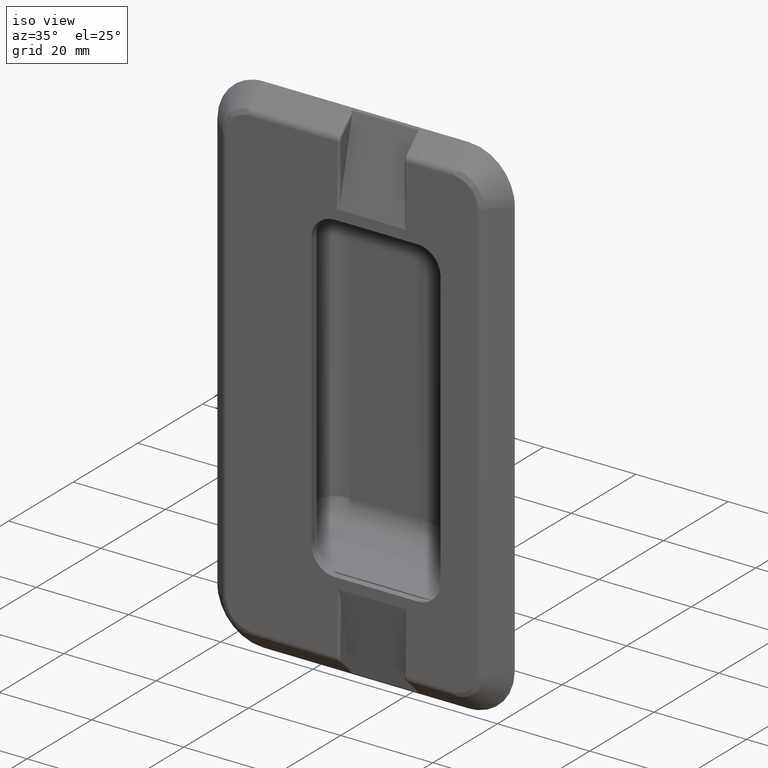
[diagram: clean part render]
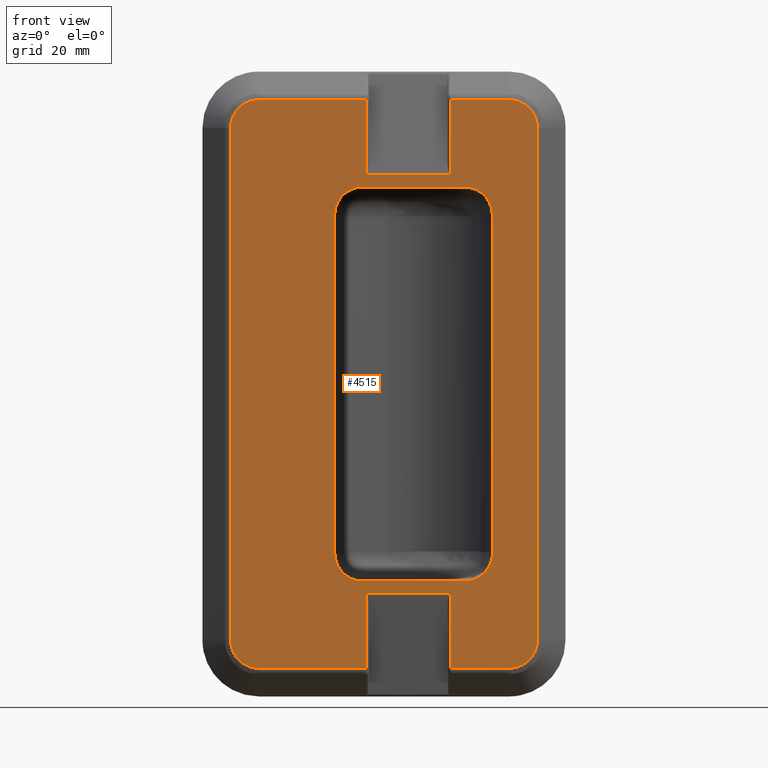
[diagram: tour spotlight — one face highlighted and labeled with its STEP entity id]
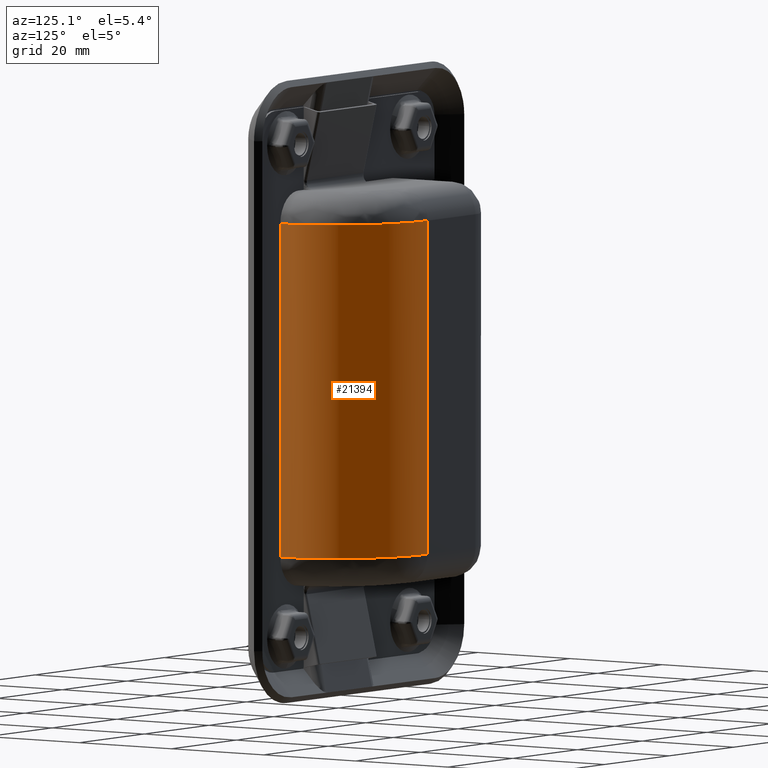
[diagram: tour spotlight — one face highlighted and labeled with its STEP entity id]
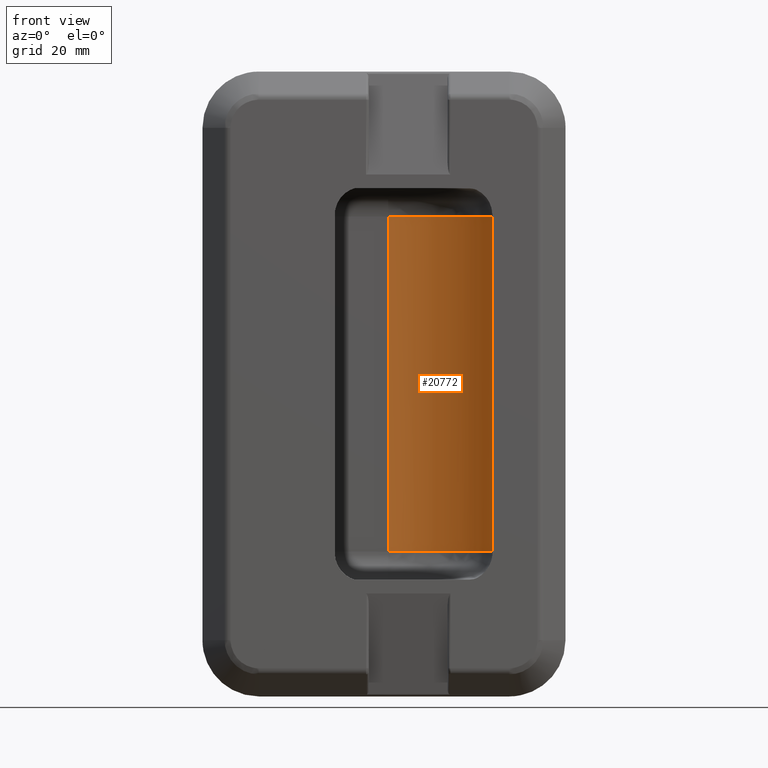
[diagram: tour spotlight — one face highlighted and labeled with its STEP entity id]
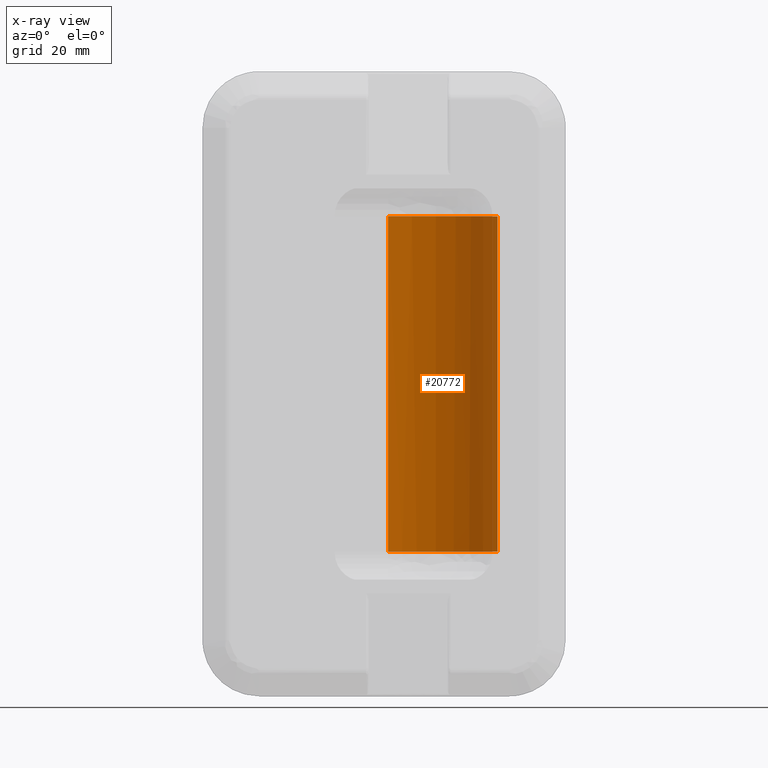
[diagram: x-ray of the same camera — body ghosted, this tour face saturated]
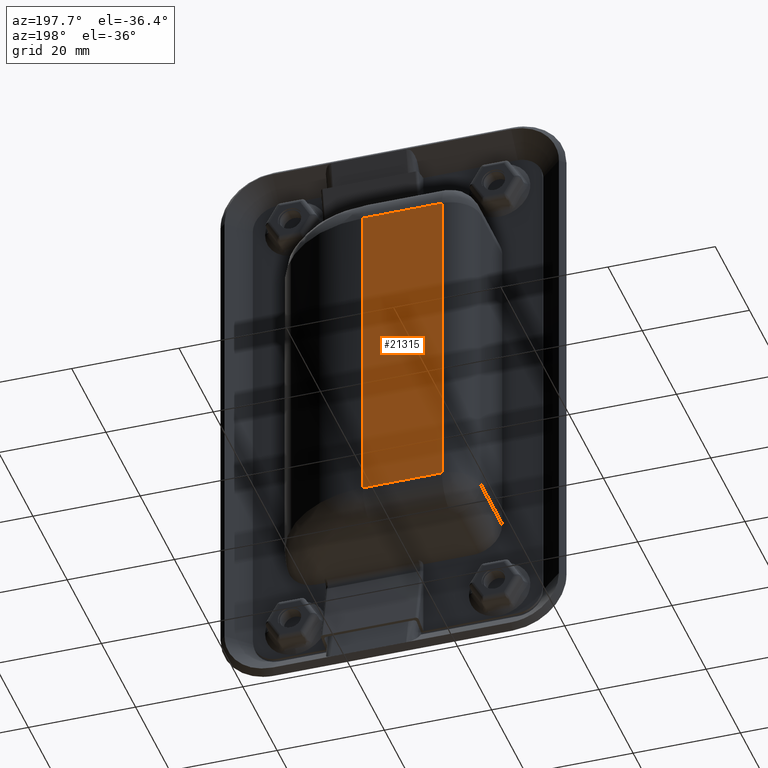
[diagram: tour spotlight — one face highlighted and labeled with its STEP entity id]
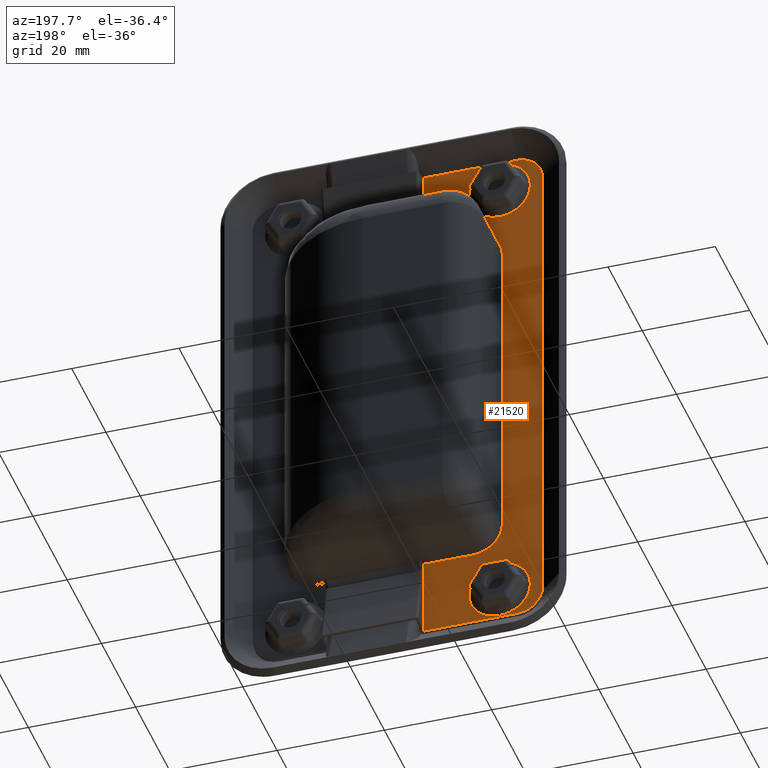
[diagram: tour spotlight — one face highlighted and labeled with its STEP entity id]
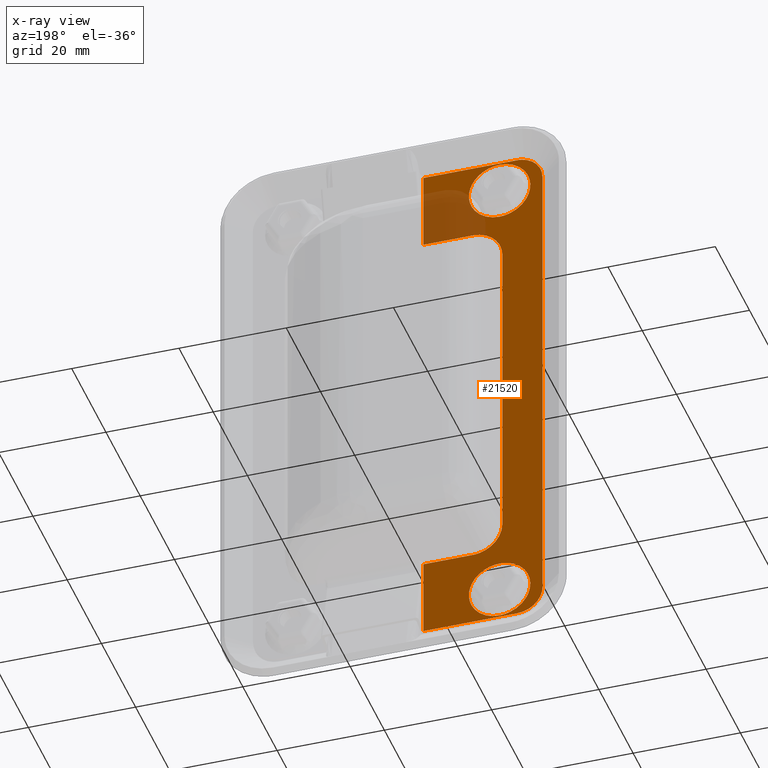
[diagram: x-ray of the same camera — body ghosted, this tour face saturated]
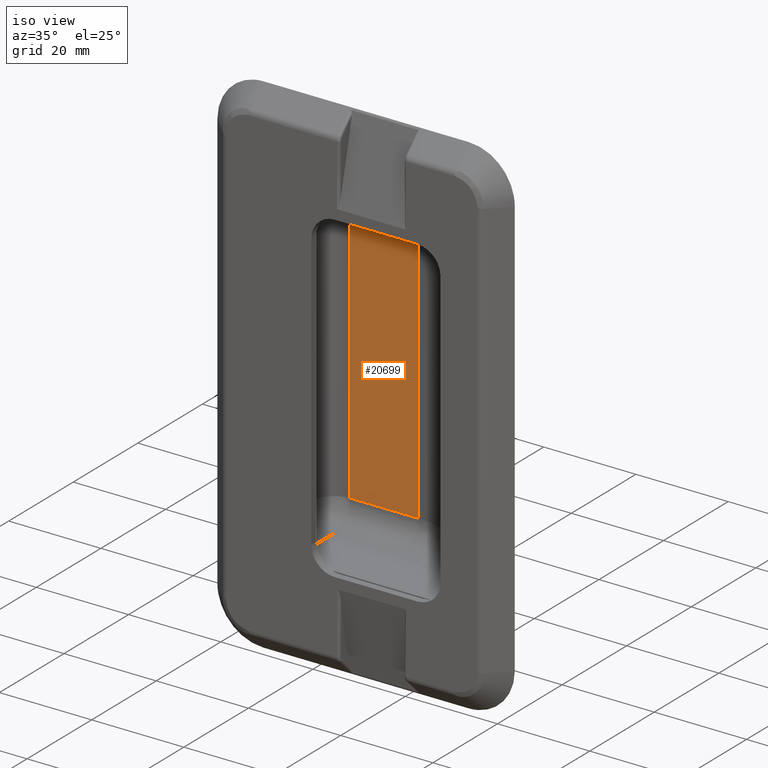
[diagram: tour spotlight — one face highlighted and labeled with its STEP entity id]
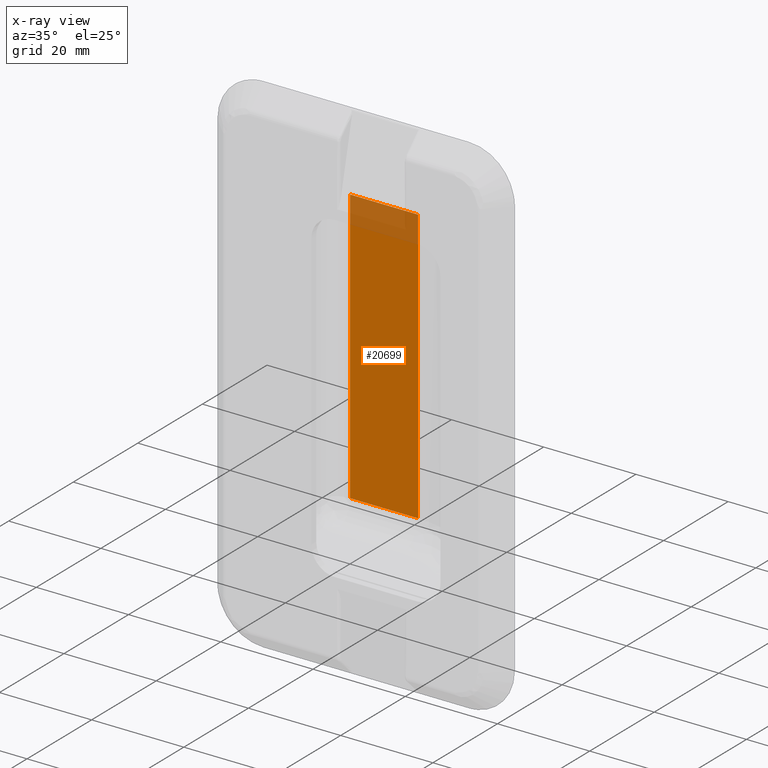
[diagram: x-ray of the same camera — body ghosted, this tour face saturated]
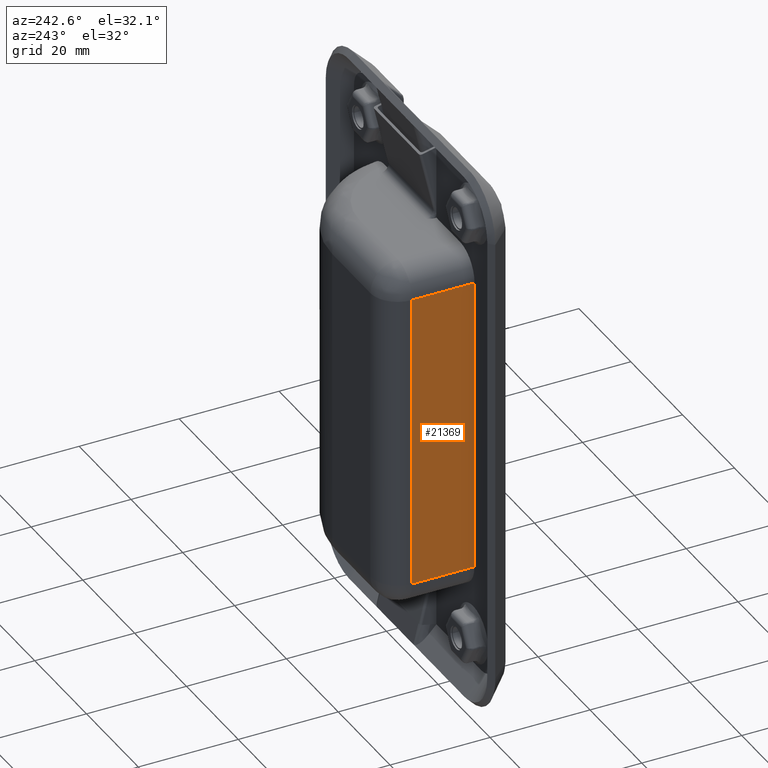
[diagram: tour spotlight — one face highlighted and labeled with its STEP entity id]
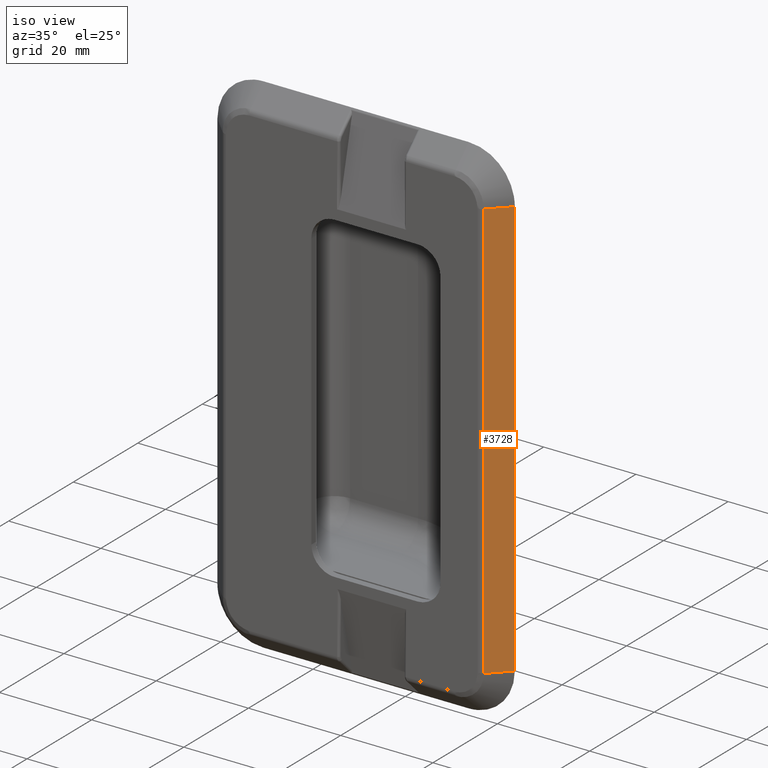
[diagram: tour spotlight — one face highlighted and labeled with its STEP entity id]
A machine part: a face-by-face anatomy tour. The part has 465 B-rep faces; the first image is the clean iso view, then the 8 largest visible faces are spotlighted one at a time (largest first), each with its STEP entity span.

Face 1 — front view, entity #4515. In plain terms, the highlighted face is a freeform B-spline surface patch.
Definition (entity closure, byte-faithful):
#2301=CARTESIAN_POINT('',(44.049999999999997,-5.499985000000000,50.500694937707799));
#2302=VERTEX_POINT('',#2301);
#2395=CARTESIAN_POINT('',(29.050000000000001,-5.499985000000000,50.500694937707799));
#2396=VERTEX_POINT('',#2395);
#2549=CARTESIAN_POINT('',(29.050000000000001,-5.499985000000000,-50.500694937707799));
#2550=VERTEX_POINT('',#2549);
#2643=CARTESIAN_POINT('',(44.049999999999997,-5.499985000000000,-50.500694937707799));
#2644=VERTEX_POINT('',#2643);
#2770=CARTESIAN_POINT('',(10.0,-5.499985000000000,-50.500694937707692));
#2771=VERTEX_POINT('',#2770);
#2772=CARTESIAN_POINT('',(10.0,-5.499985000000000,-50.500694937707692));
#2773=CARTESIAN_POINT('',(29.050000000000001,-5.499985000000000,-50.500694937707799));
#2774=QUASI_UNIFORM_CURVE('',1,(#2772,#2773),.UNSPECIFIED.,.F.,.U.);
#2775=EDGE_CURVE('',#2771,#2550,#2774,.T.);
#2810=CARTESIAN_POINT('',(4.999305062292249,-5.499985000000000,-45.500000000000000));
#2811=VERTEX_POINT('',#2810);
#2841=CARTESIAN_POINT('',(4.999305062292290,-5.499985000000000,-45.500000000000000));
#2842=CARTESIAN_POINT('',(4.999305062292289,-5.499985000000000,-50.500694937707713));
#2843=CARTESIAN_POINT('',(10.0,-5.499985000000000,-50.500694937707713));
#2851=(BOUNDED_CURVE()B_SPLINE_CURVE(2,(#2841,#2842,#2843),.UNSPECIFIED.,.F.,.U.)CURVE()GEOMETRIC_REPRESENTATION_ITEM()QUASI_UNIFORM_CURVE()RATIONAL_B_SPLINE_CURVE((1.0,0.707106781186547,1.0))REPRESENTATION_ITEM(''));
#2852=EDGE_CURVE('',#2811,#2771,#2851,.T.);
#2871=CARTESIAN_POINT('',(4.999305062292289,-5.499985000000000,45.500000000000000));
#2872=VERTEX_POINT('',#2871);
#2894=CARTESIAN_POINT('',(4.999305062292289,-5.499985000000000,45.500000000000000));
#2895=CARTESIAN_POINT('',(4.999305062292249,-5.499985000000000,-45.500000000000000));
#2896=QUASI_UNIFORM_CURVE('',1,(#2894,#2895),.UNSPECIFIED.,.F.,.U.);
#2897=EDGE_CURVE('',#2872,#2811,#2896,.T.);
#2919=CARTESIAN_POINT('',(10.0,-5.499985000000000,50.500694937707799));
#2920=VERTEX_POINT('',#2919);
#2950=CARTESIAN_POINT('',(10.0,-5.499985000000000,50.500694937707713));
#2951=CARTESIAN_POINT('',(4.999305062292289,-5.499985000000000,50.500694937707713));
#2952=CARTESIAN_POINT('',(4.999305062292290,-5.499985000000000,45.500000000000000));
#2960=(BOUNDED_CURVE()B_SPLINE_CURVE(2,(#2950,#2951,#2952),.UNSPECIFIED.,.F.,.U.)CURVE()GEOMETRIC_REPRESENTATION_ITEM()QUASI_UNIFORM_CURVE()RATIONAL_B_SPLINE_CURVE((1.0,0.707106781186547,1.0))REPRESENTATION_ITEM(''));
#2961=EDGE_CURVE('',#2920,#2872,#2960,.T.);
#2980=CARTESIAN_POINT('',(29.050000000000001,-5.499985000000000,50.500694937707799));
#2981=CARTESIAN_POINT('',(10.0,-5.499985000000000,50.500694937707799));
#2982=QUASI_UNIFORM_CURVE('',1,(#2980,#2981),.UNSPECIFIED.,.F.,.U.);
#2983=EDGE_CURVE('',#2396,#2920,#2982,.T.);
#3009=CARTESIAN_POINT('',(54.500000000000000,-5.499985000000000,-50.500694937707692));
#3010=VERTEX_POINT('',#3009);
#3011=CARTESIAN_POINT('',(44.049999999999997,-5.499985000000000,-50.500694937707799));
#3012=CARTESIAN_POINT('',(54.500000000000000,-5.499985000000000,-50.500694937707692));
#3013=QUASI_UNIFORM_CURVE('',1,(#3011,#3012),.UNSPECIFIED.,.F.,.U.);
#3014=EDGE_CURVE('',#2644,#3010,#3013,.T.);
#3059=CARTESIAN_POINT('',(59.500694937707699,-5.499985000000000,-45.500000000000000));
#3060=VERTEX_POINT('',#3059);
#3074=CARTESIAN_POINT('',(54.500000000000000,-5.499985000000000,-50.500694937707713));
#3075=CARTESIAN_POINT('',(59.500694937707692,-5.499985000000000,-50.500694937707713));
#3076=CARTESIAN_POINT('',(59.500694937707713,-5.499985000000000,-45.500000000000000));
#3084=(BOUNDED_CURVE()B_SPLINE_CURVE(2,(#3074,#3075,#3076),.UNSPECIFIED.,.F.,.U.)CURVE()GEOMETRIC_REPRESENTATION_ITEM()QUASI_UNIFORM_CURVE()RATIONAL_B_SPLINE_CURVE((1.0,0.707106781186547,1.0))REPRESENTATION_ITEM(''));
#3085=EDGE_CURVE('',#3010,#3060,#3084,.T.);
#3120=CARTESIAN_POINT('',(59.500694937707699,-5.499985000000000,45.500000000000000));
#3121=VERTEX_POINT('',#3120);
#3135=CARTESIAN_POINT('',(59.500694937707699,-5.499985000000000,-45.500000000000000));
#3136=CARTESIAN_POINT('',(59.500694937707699,-5.499985000000000,45.500000000000000));
#3137=QUASI_UNIFORM_CURVE('',1,(#3135,#3136),.UNSPECIFIED.,.F.,.U.);
#3138=EDGE_CURVE('',#3060,#3121,#3137,.T.);
#3168=CARTESIAN_POINT('',(54.500000000000000,-5.499985000000000,50.500694937707692));
#3169=VERTEX_POINT('',#3168);
#3183=CARTESIAN_POINT('',(59.500694937707713,-5.499985000000000,45.500000000000000));
#3184=CARTESIAN_POINT('',(59.500694937707692,-5.499985000000000,50.500694937707713));
#3185=CARTESIAN_POINT('',(54.500000000000000,-5.499985000000000,50.500694937707713));
#3193=(BOUNDED_CURVE()B_SPLINE_CURVE(2,(#3183,#3184,#3185),.UNSPECIFIED.,.F.,.U.)CURVE()GEOMETRIC_REPRESENTATION_ITEM()QUASI_UNIFORM_CURVE()RATIONAL_B_SPLINE_CURVE((1.0,0.707106781186547,1.0))REPRESENTATION_ITEM(''));
#3194=EDGE_CURVE('',#3121,#3169,#3193,.T.);
#3233=CARTESIAN_POINT('',(54.500000000000000,-5.499985000000000,50.500694937707692));
#3234=CARTESIAN_POINT('',(44.049999999999997,-5.499985000000000,50.500694937707799));
#3235=QUASI_UNIFORM_CURVE('',1,(#3233,#3234),.UNSPECIFIED.,.F.,.U.);
#3236=EDGE_CURVE('',#3169,#2302,#3235,.T.);
#3256=CARTESIAN_POINT('',(44.049999999999997,-5.499985000000000,37.220436142754536));
#3257=VERTEX_POINT('',#3256);
#3258=CARTESIAN_POINT('',(44.049999999999997,-5.499985000000000,50.500694937707799));
#3259=CARTESIAN_POINT('',(44.049999999999997,-5.499985000000000,37.220436142754536));
#3260=QUASI_UNIFORM_CURVE('',1,(#3258,#3259),.UNSPECIFIED.,.F.,.U.);
#3261=EDGE_CURVE('',#2302,#3257,#3260,.T.);
#3309=CARTESIAN_POINT('',(29.050000000000001,-5.499985000000000,37.220436142754536));
#3310=VERTEX_POINT('',#3309);
#3311=CARTESIAN_POINT('',(29.050000000000001,-5.499985000000000,37.220436142754536));
#3312=CARTESIAN_POINT('',(29.050000000000001,-5.499985000000000,50.500694937707799));
#3313=QUASI_UNIFORM_CURVE('',1,(#3311,#3312),.UNSPECIFIED.,.F.,.U.);
#3314=EDGE_CURVE('',#3310,#2396,#3313,.T.);
#3354=CARTESIAN_POINT('',(44.049999999999997,-5.499985000000000,-37.220436142754536));
#3355=VERTEX_POINT('',#3354);
#3356=CARTESIAN_POINT('',(44.049999999999997,-5.499985000000000,-37.220436142754536));
#3357=CARTESIAN_POINT('',(44.049999999999997,-5.499985000000000,-50.500694937707799));
#3358=QUASI_UNIFORM_CURVE('',1,(#3356,#3357),.UNSPECIFIED.,.F.,.U.);
#3359=EDGE_CURVE('',#3355,#2644,#3358,.T.);
#3391=CARTESIAN_POINT('',(29.050000000000001,-5.499985000000000,-37.220436142754536));
#3392=VERTEX_POINT('',#3391);
#3393=CARTESIAN_POINT('',(29.050000000000001,-5.499985000000000,-50.500694937707799));
#3394=CARTESIAN_POINT('',(29.050000000000001,-5.499985000000000,-37.220436142754536));
#3395=QUASI_UNIFORM_CURVE('',1,(#3393,#3394),.UNSPECIFIED.,.F.,.U.);
#3396=EDGE_CURVE('',#2550,#3392,#3395,.T.);
#3466=CARTESIAN_POINT('',(29.050000000000001,-5.499985000000000,37.220436142754536));
#3467=CARTESIAN_POINT('',(44.049999999999997,-5.499985000000000,37.220436142754536));
#3468=QUASI_UNIFORM_CURVE('',1,(#3466,#3467),.UNSPECIFIED.,.F.,.U.);
#3469=EDGE_CURVE('',#3310,#3257,#3468,.T.);
#3518=CARTESIAN_POINT('',(29.050000000000001,-5.499985000000000,-37.220436142754536));
#3519=CARTESIAN_POINT('',(44.049999999999997,-5.499985000000000,-37.220436142754536));
#3520=QUASI_UNIFORM_CURVE('',1,(#3518,#3519),.UNSPECIFIED.,.F.,.U.);
#3521=EDGE_CURVE('',#3392,#3355,#3520,.T.);
#4095=CARTESIAN_POINT('',(46.500000000000000,-5.499985000000000,35.0));
#4096=VERTEX_POINT('',#4095);
#4102=CARTESIAN_POINT('',(28.500000000000000,-5.499984999999930,35.0));
#4103=VERTEX_POINT('',#4102);
#4104=CARTESIAN_POINT('',(46.500000000000000,-5.499985000000000,35.0));
#4105=CARTESIAN_POINT('',(28.500000000000000,-5.499984999999930,35.0));
#4106=QUASI_UNIFORM_CURVE('',1,(#4104,#4105),.UNSPECIFIED.,.F.,.U.);
#4107=EDGE_CURVE('',#4096,#4103,#4106,.T.);
#4140=CARTESIAN_POINT('',(51.500000000000000,-5.499984999999930,30.0));
#4141=VERTEX_POINT('',#4140);
#4147=CARTESIAN_POINT('',(51.500000000000000,-5.499984999999930,30.0));
#4148=CARTESIAN_POINT('',(51.500000000000000,-5.499984999999930,34.999999999999993));
#4149=CARTESIAN_POINT('',(46.500000000000000,-5.499984999999930,34.999999999999993));
#4157=(BOUNDED_CURVE()B_SPLINE_CURVE(2,(#4147,#4148,#4149),.UNSPECIFIED.,.F.,.U.)CURVE()GEOMETRIC_REPRESENTATION_ITEM()QUASI_UNIFORM_CURVE()RATIONAL_B_SPLINE_CURVE((1.0,0.707106781186548,1.0))REPRESENTATION_ITEM(''));
#4158=EDGE_CURVE('',#4141,#4096,#4157,.T.);
#4184=CARTESIAN_POINT('',(51.500000000000000,-5.499984999999930,-30.0));
#4185=VERTEX_POINT('',#4184);
#4191=CARTESIAN_POINT('',(51.500000000000000,-5.499984999999930,-30.0));
#4192=CARTESIAN_POINT('',(51.500000000000000,-5.499984999999930,30.0));
#4193=QUASI_UNIFORM_CURVE('',1,(#4191,#4192),.UNSPECIFIED.,.F.,.U.);
#4194=EDGE_CURVE('',#4185,#4141,#4193,.T.);
#4221=CARTESIAN_POINT('',(46.500000000000000,-5.499984999999930,-35.0));
#4222=VERTEX_POINT('',#4221);
#4228=CARTESIAN_POINT('',(46.500000000000000,-5.499984999999930,-34.999999999999993));
#4229=CARTESIAN_POINT('',(51.500000000000000,-5.499984999999930,-34.999999999999993));
#4230=CARTESIAN_POINT('',(51.500000000000000,-5.499984999999930,-30.0));
#4238=(BOUNDED_CURVE()B_SPLINE_CURVE(2,(#4228,#4229,#4230),.UNSPECIFIED.,.F.,.U.)CURVE()GEOMETRIC_REPRESENTATION_ITEM()QUASI_UNIFORM_CURVE()RATIONAL_B_SPLINE_CURVE((1.0,0.707106781186548,1.0))REPRESENTATION_ITEM(''));
#4239=EDGE_CURVE('',#4222,#4185,#4238,.T.);
#4265=CARTESIAN_POINT('',(28.500000000000000,-5.499984999999930,-35.0));
#4266=VERTEX_POINT('',#4265);
#4272=CARTESIAN_POINT('',(28.500000000000000,-5.499984999999930,-35.0));
#4273=CARTESIAN_POINT('',(46.500000000000000,-5.499984999999930,-35.0));
#4274=QUASI_UNIFORM_CURVE('',1,(#4272,#4273),.UNSPECIFIED.,.F.,.U.);
#4275=EDGE_CURVE('',#4266,#4222,#4274,.T.);
#4302=CARTESIAN_POINT('',(23.500000000000000,-5.499984999999930,-30.0));
#4303=VERTEX_POINT('',#4302);
#4309=CARTESIAN_POINT('',(23.500000000000000,-5.499984999999930,-30.0));
#4310=CARTESIAN_POINT('',(23.500000000000004,-5.499984999999930,-34.999999999999993));
#4311=CARTESIAN_POINT('',(28.500000000000000,-5.499984999999930,-34.999999999999993));
#4319=(BOUNDED_CURVE()B_SPLINE_CURVE(2,(#4309,#4310,#4311),.UNSPECIFIED.,.F.,.U.)CURVE()GEOMETRIC_REPRESENTATION_ITEM()QUASI_UNIFORM_CURVE()RATIONAL_B_SPLINE_CURVE((1.0,0.707106781186548,1.0))REPRESENTATION_ITEM(''));
#4320=EDGE_CURVE('',#4303,#4266,#4319,.T.);
#4346=CARTESIAN_POINT('',(23.500000000000000,-5.499984999999930,30.0));
#4347=VERTEX_POINT('',#4346);
#4353=CARTESIAN_POINT('',(23.500000000000000,-5.499984999999930,30.0));
#4354=CARTESIAN_POINT('',(23.500000000000000,-5.499984999999930,-30.0));
#4355=QUASI_UNIFORM_CURVE('',1,(#4353,#4354),.UNSPECIFIED.,.F.,.U.);
#4356=EDGE_CURVE('',#4347,#4303,#4355,.T.);
#4382=CARTESIAN_POINT('',(28.500000000000000,-5.499984999999930,34.999999999999993));
#4383=CARTESIAN_POINT('',(23.500000000000004,-5.499984999999930,34.999999999999993));
#4384=CARTESIAN_POINT('',(23.500000000000000,-5.499984999999930,30.0));
#4392=(BOUNDED_CURVE()B_SPLINE_CURVE(2,(#4382,#4383,#4384),.UNSPECIFIED.,.F.,.U.)CURVE()GEOMETRIC_REPRESENTATION_ITEM()QUASI_UNIFORM_CURVE()RATIONAL_B_SPLINE_CURVE((1.0,0.707106781186548,1.0))REPRESENTATION_ITEM(''));
#4393=EDGE_CURVE('',#4103,#4347,#4392,.T.);
#4482=CARTESIAN_POINT('',(2.276960938366759,-5.499985000000000,55.545714166224528));
#4483=CARTESIAN_POINT('',(62.223036625231202,-5.499985000000000,55.545714166224528));
#4484=CARTESIAN_POINT('',(2.276960938366759,-5.499985000000000,-55.545716875292896));
#4485=CARTESIAN_POINT('',(62.223036625231202,-5.499985000000000,-55.545716875292896));
#4486=B_SPLINE_SURFACE_WITH_KNOTS('',1,1,((#4482,#4484),(#4483,#4485)),.UNSPECIFIED.,.F.,.F.,.U.,(2,2),(2,2),(0.0,59.946075686864440),(0.0,111.091431041517400),.UNSPECIFIED.);
#4487=ORIENTED_EDGE('',*,*,#2852,.T.);
#4488=ORIENTED_EDGE('',*,*,#2775,.T.);
#4489=ORIENTED_EDGE('',*,*,#3396,.T.);
#4490=ORIENTED_EDGE('',*,*,#3521,.T.);
#4491=ORIENTED_EDGE('',*,*,#3359,.T.);
#4492=ORIENTED_EDGE('',*,*,#3014,.T.);
#4493=ORIENTED_EDGE('',*,*,#3085,.T.);
#4494=ORIENTED_EDGE('',*,*,#3138,.T.);
#4495=ORIENTED_EDGE('',*,*,#3194,.T.);
#4496=ORIENTED_EDGE('',*,*,#3236,.T.);
#4497=ORIENTED_EDGE('',*,*,#3261,.T.);
#4498=ORIENTED_EDGE('',*,*,#3469,.F.);
#4499=ORIENTED_EDGE('',*,*,#3314,.T.);
#4500=ORIENTED_EDGE('',*,*,#2983,.T.);
#4501=ORIENTED_EDGE('',*,*,#2961,.T.);
#4502=ORIENTED_EDGE('',*,*,#2897,.T.);
#4503=EDGE_LOOP('',(#4487,#4488,#4489,#4490,#4491,#4492,#4493,#4494,#4495,#4496,#4497,#4498,#4499,#4500,#4501,#4502));
#4504=FACE_OUTER_BOUND('',#4503,.T.);
#4505=ORIENTED_EDGE('',*,*,#4393,.F.);
#4506=ORIENTED_EDGE('',*,*,#4107,.F.);
#4507=ORIENTED_EDGE('',*,*,#4158,.F.);
#4508=ORIENTED_EDGE('',*,*,#4194,.F.);
#4509=ORIENTED_EDGE('',*,*,#4239,.F.);
#4510=ORIENTED_EDGE('',*,*,#4275,.F.);
#4511=ORIENTED_EDGE('',*,*,#4320,.F.);
#4512=ORIENTED_EDGE('',*,*,#4356,.F.);
#4513=EDGE_LOOP('',(#4505,#4506,#4507,#4508,#4509,#4510,#4511,#4512));
#4514=FACE_BOUND('',#4513,.T.);
#4515=ADVANCED_FACE('',(#4504,#4514),#4486,.F.);

Face 2 — auxiliary view, entity #21394. In plain terms, the highlighted face is a freeform B-spline surface patch.
Definition (entity closure, byte-faithful):
#20790=CARTESIAN_POINT('',(52.883822943139897,-3.499985000000000,29.750000000000000));
#20791=VERTEX_POINT('',#20790);
#20830=CARTESIAN_POINT('',(32.984074000000000,14.500017000000019,29.750000000000000));
#20831=VERTEX_POINT('',#20830);
#20832=CARTESIAN_POINT('',(32.984074000000000,14.500017000000000,29.750000000000000));
#20833=CARTESIAN_POINT('',(51.074756502007382,14.500016999999994,29.750000000000000));
#20834=CARTESIAN_POINT('',(52.883822943139869,-3.499985000000002,29.750000000000000));
#20842=(BOUNDED_CURVE()B_SPLINE_CURVE(2,(#20832,#20833,#20834),.UNSPECIFIED.,.F.,.U.)CURVE()GEOMETRIC_REPRESENTATION_ITEM()QUASI_UNIFORM_CURVE()RATIONAL_B_SPLINE_CURVE((1.0,0.741619814999572,1.0))REPRESENTATION_ITEM(''));
#20843=EDGE_CURVE('',#20831,#20791,#20842,.T.);
#21041=CARTESIAN_POINT('',(52.883822943139897,-3.499985000000000,-29.750000000000000));
#21042=VERTEX_POINT('',#21041);
#21094=CARTESIAN_POINT('',(32.984074000000000,14.500017000000019,-29.750000000000000));
#21095=VERTEX_POINT('',#21094);
#21109=CARTESIAN_POINT('',(52.883822943139869,-3.499985000000005,-29.750000000000000));
#21110=CARTESIAN_POINT('',(51.074756502007389,14.500016999999996,-29.750000000000004));
#21111=CARTESIAN_POINT('',(32.984074000000000,14.500017000000000,-29.750000000000000));
#21119=(BOUNDED_CURVE()B_SPLINE_CURVE(2,(#21109,#21110,#21111),.UNSPECIFIED.,.F.,.U.)CURVE()GEOMETRIC_REPRESENTATION_ITEM()QUASI_UNIFORM_CURVE()RATIONAL_B_SPLINE_CURVE((1.0,0.741619814999572,1.0))REPRESENTATION_ITEM(''));
#21120=EDGE_CURVE('',#21042,#21095,#21119,.T.);
#21305=CARTESIAN_POINT('',(32.984074000000000,14.500017000000019,-29.750000000000000));
#21306=CARTESIAN_POINT('',(32.984074000000000,14.500017000000019,29.750000000000000));
#21307=QUASI_UNIFORM_CURVE('',1,(#21305,#21306),.UNSPECIFIED.,.F.,.U.);
#21308=EDGE_CURVE('',#21095,#20831,#21307,.T.);
#21370=CARTESIAN_POINT('',(32.202657009514859,14.484745856979290,-31.237500000000001));
#21371=CARTESIAN_POINT('',(32.202657009514859,14.484745856979290,31.274687500000010));
#21372=CARTESIAN_POINT('',(52.299075167782050,15.270529977902202,-31.237500000000004));
#21373=CARTESIAN_POINT('',(52.299075167782050,15.270529977902202,31.274687500000006));
#21374=CARTESIAN_POINT('',(52.972847422811455,-4.829955350193201,-31.237500000000011));
#21375=CARTESIAN_POINT('',(52.972847422811455,-4.829955350193201,31.274687500000010));
#21383=(BOUNDED_SURFACE()B_SPLINE_SURFACE(1,2,((#21370,#21372,#21374),(#21371,#21373,#21375)),.UNSPECIFIED.,.F.,.F.,.U.)B_SPLINE_SURFACE_WITH_KNOTS((2,2),(3,3),(0.0,62.512187500000017),(0.0,33.267687857316353),.UNSPECIFIED.)GEOMETRIC_REPRESENTATION_ITEM()RATIONAL_B_SPLINE_SURFACE(((1.0,0.703393984141120,0.995071844328985),(1.0,0.703393984141120,0.995071844328985)))REPRESENTATION_ITEM('')SURFACE());
#21384=CARTESIAN_POINT('',(52.883822943139897,-3.499985000000000,-29.750000000000000));
#21385=CARTESIAN_POINT('',(52.883822943139897,-3.499985000000000,29.750000000000000));
#21386=QUASI_UNIFORM_CURVE('',1,(#21384,#21385),.UNSPECIFIED.,.F.,.U.);
#21387=EDGE_CURVE('',#21042,#20791,#21386,.T.);
#21388=ORIENTED_EDGE('',*,*,#21387,.F.);
#21389=ORIENTED_EDGE('',*,*,#21120,.T.);
#21390=ORIENTED_EDGE('',*,*,#21308,.T.);
#21391=ORIENTED_EDGE('',*,*,#20843,.T.);
#21392=EDGE_LOOP('',(#21388,#21389,#21390,#21391));
#21393=FACE_OUTER_BOUND('',#21392,.T.);
#21394=ADVANCED_FACE('',(#21393),#21383,.T.);

Face 3 — front view, entity #20772. An x-ray twin of the same camera follows (body ghosted, this face saturated) — the face is partly hidden behind the body. In plain terms, the highlighted face is a freeform B-spline surface patch.
Definition (entity closure, byte-faithful):
#20174=CARTESIAN_POINT('',(52.426296249526800,-3.999985000000000,29.750000000000000));
#20175=VERTEX_POINT('',#20174);
#20229=CARTESIAN_POINT('',(32.984074000000000,14.000017000000019,29.750000000000000));
#20230=VERTEX_POINT('',#20229);
#20244=CARTESIAN_POINT('',(32.984074000000000,14.000017000000000,29.750000000000000));
#20245=CARTESIAN_POINT('',(51.037567808226711,14.000017000000000,29.749999999999993));
#20246=CARTESIAN_POINT('',(52.426296249526828,-3.999985000000001,29.750000000000000));
#20254=(BOUNDED_CURVE()B_SPLINE_CURVE(2,(#20244,#20245,#20246),.UNSPECIFIED.,.F.,.U.)CURVE()GEOMETRIC_REPRESENTATION_ITEM()QUASI_UNIFORM_CURVE()RATIONAL_B_SPLINE_CURVE((1.0,0.733799350762514,1.0))REPRESENTATION_ITEM(''));
#20255=EDGE_CURVE('',#20230,#20175,#20254,.T.);
#20425=CARTESIAN_POINT('',(52.426296249526800,-3.999985000000000,-29.750000000000000));
#20426=VERTEX_POINT('',#20425);
#20463=CARTESIAN_POINT('',(32.984074000000000,14.000017000000019,-29.750000000000000));
#20464=VERTEX_POINT('',#20463);
#20465=CARTESIAN_POINT('',(52.426296249526828,-3.999984999999998,-29.750000000000000));
#20466=CARTESIAN_POINT('',(51.037567808226704,14.000017000000007,-29.750000000000007));
#20467=CARTESIAN_POINT('',(32.984074000000000,14.000017000000000,-29.750000000000000));
#20475=(BOUNDED_CURVE()B_SPLINE_CURVE(2,(#20465,#20466,#20467),.UNSPECIFIED.,.F.,.U.)CURVE()GEOMETRIC_REPRESENTATION_ITEM()QUASI_UNIFORM_CURVE()RATIONAL_B_SPLINE_CURVE((1.0,0.733799350762514,1.0))REPRESENTATION_ITEM(''));
#20476=EDGE_CURVE('',#20426,#20464,#20475,.T.);
#20689=CARTESIAN_POINT('',(32.984074000000000,14.000017000000019,-29.750000000000000));
#20690=CARTESIAN_POINT('',(32.984074000000000,14.000017000000019,29.750000000000000));
#20691=QUASI_UNIFORM_CURVE('',1,(#20689,#20690),.UNSPECIFIED.,.F.,.U.);
#20692=EDGE_CURVE('',#20464,#20230,#20691,.T.);
#20748=CARTESIAN_POINT('',(32.333561489268718,13.989163555798230,-31.237500000000001));
#20749=CARTESIAN_POINT('',(32.333561489268718,13.989163555798230,31.274687500000010));
#20750=CARTESIAN_POINT('',(52.294880227579775,14.655436321144272,-31.237500000000008));
#20751=CARTESIAN_POINT('',(52.294880227579775,14.655436321144272,31.274687500000002));
#20752=CARTESIAN_POINT('',(52.483207084540474,-5.316110893962467,-31.237500000000004));
#20753=CARTESIAN_POINT('',(52.483207084540474,-5.316110893962467,31.274687500000002));
#20761=(BOUNDED_SURFACE()B_SPLINE_SURFACE(1,2,((#20748,#20750,#20752),(#20749,#20751,#20753)),.UNSPECIFIED.,.F.,.F.,.U.)B_SPLINE_SURFACE_WITH_KNOTS((2,2),(3,3),(0.0,62.512187500000010),(0.0,32.856813082905987),.UNSPECIFIED.)GEOMETRIC_REPRESENTATION_ITEM()RATIONAL_B_SPLINE_SURFACE(((1.0,0.696981284242146,0.995389515982842),(1.0,0.696981284242146,0.995389515982842)))REPRESENTATION_ITEM('')SURFACE());
#20762=CARTESIAN_POINT('',(52.426296249526800,-3.999985000000000,-29.750000000000000));
#20763=CARTESIAN_POINT('',(52.426296249526800,-3.999985000000000,29.750000000000000));
#20764=QUASI_UNIFORM_CURVE('',1,(#20762,#20763),.UNSPECIFIED.,.F.,.U.);
#20765=EDGE_CURVE('',#20426,#20175,#20764,.T.);
#20766=ORIENTED_EDGE('',*,*,#20765,.T.);
#20767=ORIENTED_EDGE('',*,*,#20255,.F.);
#20768=ORIENTED_EDGE('',*,*,#20692,.F.);
#20769=ORIENTED_EDGE('',*,*,#20476,.F.);
#20770=EDGE_LOOP('',(#20766,#20767,#20768,#20769));
#20771=FACE_OUTER_BOUND('',#20770,.T.);
#20772=ADVANCED_FACE('',(#20771),#20761,.F.);

Face 4 — auxiliary view, entity #21315. In plain terms, the highlighted face is a freeform B-spline surface patch.
Definition (entity closure, byte-faithful):
#20830=CARTESIAN_POINT('',(32.984074000000000,14.500017000000019,29.750000000000000));
#20831=VERTEX_POINT('',#20830);
#20890=CARTESIAN_POINT('',(18.250000000000000,14.500017000000019,29.750000000000000));
#20891=VERTEX_POINT('',#20890);
#20913=CARTESIAN_POINT('',(18.250000000000000,14.500017000000019,29.750000000000000));
#20914=CARTESIAN_POINT('',(32.984074000000000,14.500017000000019,29.750000000000000));
#20915=QUASI_UNIFORM_CURVE('',1,(#20913,#20914),.UNSPECIFIED.,.F.,.U.);
#20916=EDGE_CURVE('',#20891,#20831,#20915,.T.);
#21094=CARTESIAN_POINT('',(32.984074000000000,14.500017000000019,-29.750000000000000));
#21095=VERTEX_POINT('',#21094);
#21141=CARTESIAN_POINT('',(18.250000000000000,14.500017000000019,-29.750000000000000));
#21142=VERTEX_POINT('',#21141);
#21156=CARTESIAN_POINT('',(32.984074000000000,14.500017000000019,-29.750000000000000));
#21157=CARTESIAN_POINT('',(18.250000000000000,14.500017000000019,-29.750000000000000));
#21158=QUASI_UNIFORM_CURVE('',1,(#21156,#21157),.UNSPECIFIED.,.F.,.U.);
#21159=EDGE_CURVE('',#21095,#21142,#21158,.T.);
#21285=CARTESIAN_POINT('',(18.250000000000000,14.500017000000019,-29.750000000000000));
#21286=CARTESIAN_POINT('',(18.250000000000000,14.500017000000019,29.750000000000000));
#21287=QUASI_UNIFORM_CURVE('',1,(#21285,#21286),.UNSPECIFIED.,.F.,.U.);
#21288=EDGE_CURVE('',#21142,#20891,#21287,.T.);
#21300=CARTESIAN_POINT('',(17.514033084897960,14.500017000000019,32.722024884677452));
#21301=CARTESIAN_POINT('',(17.514033084897960,14.500017000000019,-32.722026480591822));
#21302=CARTESIAN_POINT('',(33.720040256437613,14.500017000000019,32.722024884677452));
#21303=CARTESIAN_POINT('',(33.720040256437613,14.500017000000019,-32.722026480591822));
#21304=B_SPLINE_SURFACE_WITH_KNOTS('',1,1,((#21300,#21302),(#21301,#21303)),.UNSPECIFIED.,.F.,.F.,.U.,(2,2),(2,2),(0.0,65.444051365269274),(0.0,16.206007171539660),.UNSPECIFIED.);
#21305=CARTESIAN_POINT('',(32.984074000000000,14.500017000000019,-29.750000000000000));
#21306=CARTESIAN_POINT('',(32.984074000000000,14.500017000000019,29.750000000000000));
#21307=QUASI_UNIFORM_CURVE('',1,(#21305,#21306),.UNSPECIFIED.,.F.,.U.);
#21308=EDGE_CURVE('',#21095,#20831,#21307,.T.);
#21309=ORIENTED_EDGE('',*,*,#21308,.F.);
#21310=ORIENTED_EDGE('',*,*,#21159,.T.);
#21311=ORIENTED_EDGE('',*,*,#21288,.T.);
#21312=ORIENTED_EDGE('',*,*,#20916,.T.);
#21313=EDGE_LOOP('',(#21309,#21310,#21311,#21312));
#21314=FACE_OUTER_BOUND('',#21313,.T.);
#21315=ADVANCED_FACE('',(#21314),#21304,.F.);

Face 5 — auxiliary view, entity #21520. An x-ray twin of the same camera follows (body ghosted, this face saturated) — the face is partly hidden behind the body. In plain terms, the highlighted face is a freeform B-spline surface patch.
Definition (entity closure, byte-faithful):
#5833=CARTESIAN_POINT('',(8.265919385169163,-3.499985000008613,41.180142863547822));
#5834=VERTEX_POINT('',#5833);
#5840=CARTESIAN_POINT('',(13.250000000000000,-3.499985000000000,49.726487042240670));
#5841=VERTEX_POINT('',#5840);
#5842=CARTESIAN_POINT('',(13.250000000000000,-3.499985000000000,49.726487042240670));
#5843=CARTESIAN_POINT('',(7.523512957759330,-3.499985000000000,49.726487042240670));
#5844=CARTESIAN_POINT('',(7.523512957759329,-3.499985000000000,44.0));
#5845=CARTESIAN_POINT('',(7.523512957759330,-3.499985000000000,42.492341781379722));
#5846=CARTESIAN_POINT('',(8.265919385169163,-3.499985000008613,41.180142863547822));
#5854=(BOUNDED_CURVE()B_SPLINE_CURVE(2,(#5842,#5843,#5844,#5845,#5846),.UNSPECIFIED.,.F.,.U.)B_SPLINE_CURVE_WITH_KNOTS((3,2,3),(0.500000000000000,0.750000000000000,0.833929994270978),.UNSPECIFIED.)CURVE()GEOMETRIC_REPRESENTATION_ITEM()RATIONAL_B_SPLINE_CURVE((1.0,0.707106781186547,1.0,0.901669895291914,0.869362551582343))REPRESENTATION_ITEM(''));
#5855=EDGE_CURVE('',#5841,#5834,#5854,.T.);
#5857=CARTESIAN_POINT('',(18.387196680510801,-3.499985000006135,46.530190528562827));
#5858=VERTEX_POINT('',#5857);
#5859=CARTESIAN_POINT('',(18.387196680510801,-3.499985000006135,46.530190528562827));
#5860=CARTESIAN_POINT('',(16.812945261120223,-3.499985000000000,49.726487042240677));
#5861=CARTESIAN_POINT('',(13.250000000000000,-3.499985000000000,49.726487042240670));
#5869=(BOUNDED_CURVE()B_SPLINE_CURVE(2,(#5859,#5860,#5861),.UNSPECIFIED.,.F.,.U.)B_SPLINE_CURVE_WITH_KNOTS((3,3),(0.325098912528593,0.500000000000000),.UNSPECIFIED.)CURVE()GEOMETRIC_REPRESENTATION_ITEM()RATIONAL_B_SPLINE_CURVE((0.876892233208363,0.795090630066105,1.0))REPRESENTATION_ITEM(''));
#5870=EDGE_CURVE('',#5858,#5841,#5869,.T.);
#5912=CARTESIAN_POINT('',(13.250000000000000,-3.499985000000000,38.273512957759323));
#5913=VERTEX_POINT('',#5912);
#5914=CARTESIAN_POINT('',(13.250000000000000,-3.499985000000000,38.273512957759323));
#5915=CARTESIAN_POINT('',(18.976487042240674,-3.499985000000000,38.273512957759323));
#5916=CARTESIAN_POINT('',(18.976487042240670,-3.499985000000000,44.0));
#5917=CARTESIAN_POINT('',(18.976487042240670,-3.499984999999999,45.333719173608714));
#5918=CARTESIAN_POINT('',(18.387196680510808,-3.499985000006135,46.530190528562827));
#5926=(BOUNDED_CURVE()B_SPLINE_CURVE(2,(#5914,#5915,#5916,#5917,#5918),.UNSPECIFIED.,.F.,.U.)B_SPLINE_CURVE_WITH_KNOTS((3,2,3),(0.0,0.250000000000000,0.325098912528592),.UNSPECIFIED.)CURVE()GEOMETRIC_REPRESENTATION_ITEM()RATIONAL_B_SPLINE_CURVE((1.0,0.707106781186547,1.0,0.912016151120443,0.876892233208364))REPRESENTATION_ITEM(''));
#5927=EDGE_CURVE('',#5913,#5858,#5926,.T.);
#5929=CARTESIAN_POINT('',(8.265919385169163,-3.499985000008613,41.180142863547822));
#5930=CARTESIAN_POINT('',(9.910411462484444,-3.499985000000000,38.273512957759330));
#5931=CARTESIAN_POINT('',(13.250000000000000,-3.499985000000000,38.273512957759323));
#5939=(BOUNDED_CURVE()B_SPLINE_CURVE(2,(#5929,#5930,#5931),.UNSPECIFIED.,.F.,.U.)B_SPLINE_CURVE_WITH_KNOTS((3,3),(0.833929994270978,1.0),.UNSPECIFIED.)CURVE()GEOMETRIC_REPRESENTATION_ITEM()RATIONAL_B_SPLINE_CURVE((0.869362551582343,0.805436885894633,1.0))REPRESENTATION_ITEM(''));
#5940=EDGE_CURVE('',#5834,#5913,#5939,.T.);
#6591=CARTESIAN_POINT('',(8.265919385169159,-3.499985000008613,-46.819857136452192));
#6592=VERTEX_POINT('',#6591);
#6598=CARTESIAN_POINT('',(13.250000000000000,-3.499985000000000,-38.273512957759323));
#6599=VERTEX_POINT('',#6598);
#6600=CARTESIAN_POINT('',(13.250000000000000,-3.499985000000000,-38.273512957759323));
#6601=CARTESIAN_POINT('',(7.523512957759321,-3.499985000000001,-38.273512957759316));
#6602=CARTESIAN_POINT('',(7.523512957759319,-3.499985000000000,-44.0));
#6603=CARTESIAN_POINT('',(7.523512957759319,-3.499985000000000,-45.507658218620286));
#6604=CARTESIAN_POINT('',(8.265919385169159,-3.499985000008613,-46.819857136452185));
#6612=(BOUNDED_CURVE()B_SPLINE_CURVE(2,(#6600,#6601,#6602,#6603,#6604),.UNSPECIFIED.,.F.,.U.)B_SPLINE_CURVE_WITH_KNOTS((3,2,3),(0.500000000000000,0.750000000000000,0.833929994270978),.UNSPECIFIED.)CURVE()GEOMETRIC_REPRESENTATION_ITEM()RATIONAL_B_SPLINE_CURVE((1.0,0.707106781186548,1.0,0.901669895291914,0.869362551582343))REPRESENTATION_ITEM(''));
#6613=EDGE_CURVE('',#6599,#6592,#6612,.T.);
#6615=CARTESIAN_POINT('',(18.387196680510819,-3.499985000006137,-41.469809471437159));
#6616=VERTEX_POINT('',#6615);
#6617=CARTESIAN_POINT('',(18.387196680510819,-3.499985000006137,-41.469809471437159));
#6618=CARTESIAN_POINT('',(16.812945261120234,-3.499985000000000,-38.273512957759309));
#6619=CARTESIAN_POINT('',(13.250000000000000,-3.499985000000000,-38.273512957759323));
#6627=(BOUNDED_CURVE()B_SPLINE_CURVE(2,(#6617,#6618,#6619),.UNSPECIFIED.,.F.,.U.)B_SPLINE_CURVE_WITH_KNOTS((3,3),(0.325098912528592,0.500000000000000),.UNSPECIFIED.)CURVE()GEOMETRIC_REPRESENTATION_ITEM()RATIONAL_B_SPLINE_CURVE((0.876892233208364,0.795090630066105,1.0))REPRESENTATION_ITEM(''));
#6628=EDGE_CURVE('',#6616,#6599,#6627,.T.);
#6670=CARTESIAN_POINT('',(13.250000000000000,-3.499985000000000,-49.726487042240677));
#6671=VERTEX_POINT('',#6670);
#6672=CARTESIAN_POINT('',(13.250000000000000,-3.499985000000000,-49.726487042240677));
#6673=CARTESIAN_POINT('',(18.976487042240688,-3.499985000000001,-49.726487042240684));
#6674=CARTESIAN_POINT('',(18.976487042240681,-3.499985000000000,-44.0));
#6675=CARTESIAN_POINT('',(18.976487042240677,-3.499985000000000,-42.666280826391294));
#6676=CARTESIAN_POINT('',(18.387196680510819,-3.499985000006137,-41.469809471437159));
#6684=(BOUNDED_CURVE()B_SPLINE_CURVE(2,(#6672,#6673,#6674,#6675,#6676),.UNSPECIFIED.,.F.,.U.)B_SPLINE_CURVE_WITH_KNOTS((3,2,3),(0.0,0.250000000000000,0.325098912528592),.UNSPECIFIED.)CURVE()GEOMETRIC_REPRESENTATION_ITEM()RATIONAL_B_SPLINE_CURVE((1.0,0.707106781186548,1.0,0.912016151120443,0.876892233208364))REPRESENTATION_ITEM(''));
#6685=EDGE_CURVE('',#6671,#6616,#6684,.T.);
#6687=CARTESIAN_POINT('',(8.265919385169159,-3.499985000008613,-46.819857136452192));
#6688=CARTESIAN_POINT('',(9.910411462484440,-3.499985000000000,-49.726487042240677));
#6689=CARTESIAN_POINT('',(13.250000000000000,-3.499985000000000,-49.726487042240677));
#6697=(BOUNDED_CURVE()B_SPLINE_CURVE(2,(#6687,#6688,#6689),.UNSPECIFIED.,.F.,.U.)B_SPLINE_CURVE_WITH_KNOTS((3,3),(0.833929994270978,1.0),.UNSPECIFIED.)CURVE()GEOMETRIC_REPRESENTATION_ITEM()RATIONAL_B_SPLINE_CURVE((0.869362551582343,0.805436885894633,1.0))REPRESENTATION_ITEM(''));
#6698=EDGE_CURVE('',#6592,#6671,#6697,.T.);
#6866=CARTESIAN_POINT('',(27.449999999999999,-3.499985000000000,50.0));
#6867=VERTEX_POINT('',#6866);
#7048=CARTESIAN_POINT('',(27.449999999999999,-3.499985000000000,-50.0));
#7049=VERTEX_POINT('',#7048);
#17826=CARTESIAN_POINT('',(27.449999999999999,-3.499985000000000,-37.033468298494448));
#17827=VERTEX_POINT('',#17826);
#17852=CARTESIAN_POINT('',(27.449999999999999,-3.499985000000000,-37.388475115810749));
#17853=VERTEX_POINT('',#17852);
#17867=CARTESIAN_POINT('',(27.449999999999999,-3.499985000000000,-37.388475115810749));
#17868=CARTESIAN_POINT('',(27.449999999999999,-3.499985000000000,-37.033468298494448));
#17869=QUASI_UNIFORM_CURVE('',1,(#17867,#17868),.UNSPECIFIED.,.F.,.U.);
#17870=EDGE_CURVE('',#17853,#17827,#17869,.T.);
#17901=CARTESIAN_POINT('',(27.449999999999999,-3.499985000000000,-35.922174519711149));
#17902=VERTEX_POINT('',#17901);
#17932=CARTESIAN_POINT('',(27.449999999999999,-3.499985000000000,-37.033468298494448));
#17933=CARTESIAN_POINT('',(27.449999999999999,-3.499985000000000,-35.922174519711149));
#17934=QUASI_UNIFORM_CURVE('',1,(#17932,#17933),.UNSPECIFIED.,.F.,.U.);
#17935=EDGE_CURVE('',#17827,#17902,#17934,.T.);
#18208=CARTESIAN_POINT('',(27.449999999999999,-3.499985000000000,37.033468298494363));
#18209=VERTEX_POINT('',#18208);
#18240=CARTESIAN_POINT('',(27.449999999999999,-3.499985000000000,35.922174519711000));
#18241=VERTEX_POINT('',#18240);
#18255=CARTESIAN_POINT('',(27.449999999999999,-3.499985000000000,37.033468298494363));
#18256=CARTESIAN_POINT('',(27.449999999999999,-3.499985000000000,35.922174519711000));
#18257=QUASI_UNIFORM_CURVE('',1,(#18255,#18256),.UNSPECIFIED.,.F.,.U.);
#18258=EDGE_CURVE('',#18209,#18241,#18257,.T.);
#18375=CARTESIAN_POINT('',(27.449999999999999,-3.499985000000000,37.388475115810948));
#18376=VERTEX_POINT('',#18375);
#18400=CARTESIAN_POINT('',(27.449999999999999,-3.499985000000000,37.388475115810948));
#18401=CARTESIAN_POINT('',(27.449999999999999,-3.499985000000000,37.033468298494363));
#18402=QUASI_UNIFORM_CURVE('',1,(#18400,#18401),.UNSPECIFIED.,.F.,.U.);
#18403=EDGE_CURVE('',#18376,#18209,#18402,.T.);
#19550=CARTESIAN_POINT('',(10.0,-3.499985000000000,-50.0));
#19551=VERTEX_POINT('',#19550);
#19552=CARTESIAN_POINT('',(5.250000000000000,-3.499985000000000,-45.250000000000000));
#19553=VERTEX_POINT('',#19552);
#19554=CARTESIAN_POINT('',(10.0,-3.499984999999930,-49.999999999999993));
#19555=CARTESIAN_POINT('',(5.250000000000001,-3.499984999999931,-49.999999999999986));
#19556=CARTESIAN_POINT('',(5.250000000000000,-3.499984999999930,-45.250000000000000));
#19564=(BOUNDED_CURVE()B_SPLINE_CURVE(2,(#19554,#19555,#19556),.UNSPECIFIED.,.F.,.U.)CURVE()GEOMETRIC_REPRESENTATION_ITEM()QUASI_UNIFORM_CURVE()RATIONAL_B_SPLINE_CURVE((1.0,0.707106781186548,1.0))REPRESENTATION_ITEM(''));
#19565=EDGE_CURVE('',#19551,#19553,#19564,.T.);
#19733=CARTESIAN_POINT('',(5.250000000000000,-3.499985000000000,45.250000000000000));
#19734=VERTEX_POINT('',#19733);
#19735=CARTESIAN_POINT('',(10.0,-3.499985000000000,50.0));
#19736=VERTEX_POINT('',#19735);
#19737=CARTESIAN_POINT('',(5.250000000000000,-3.499984999999930,45.250000000000000));
#19738=CARTESIAN_POINT('',(5.250000000000001,-3.499984999999931,49.999999999999986));
#19739=CARTESIAN_POINT('',(10.0,-3.499984999999930,49.999999999999993));
#19747=(BOUNDED_CURVE()B_SPLINE_CURVE(2,(#19737,#19738,#19739),.UNSPECIFIED.,.F.,.U.)CURVE()GEOMETRIC_REPRESENTATION_ITEM()QUASI_UNIFORM_CURVE()RATIONAL_B_SPLINE_CURVE((1.0,0.707106781186548,1.0))REPRESENTATION_ITEM(''));
#19748=EDGE_CURVE('',#19734,#19736,#19747,.T.);
#20128=CARTESIAN_POINT('',(27.449999999999999,-3.499985000000000,50.0));
#20129=CARTESIAN_POINT('',(27.449999999999999,-3.499985000000000,37.388475115810948));
#20130=QUASI_UNIFORM_CURVE('',1,(#20128,#20129),.UNSPECIFIED.,.F.,.U.);
#20131=EDGE_CURVE('',#6867,#18376,#20130,.T.);
#20141=CARTESIAN_POINT('',(27.449999999999999,-3.499985000000000,-35.250000000000000));
#20142=VERTEX_POINT('',#20141);
#20149=CARTESIAN_POINT('',(27.449999999999999,-3.499985000000000,-35.922174519711149));
#20150=CARTESIAN_POINT('',(27.449999999999999,-3.499985000000000,-35.250000000000000));
#20151=QUASI_UNIFORM_CURVE('',1,(#20149,#20150),.UNSPECIFIED.,.F.,.U.);
#20152=EDGE_CURVE('',#17902,#20142,#20151,.T.);
#20992=CARTESIAN_POINT('',(12.750000000000000,-3.499985000000000,29.750000000000000));
#20993=VERTEX_POINT('',#20992);
#20999=CARTESIAN_POINT('',(18.250000000000000,-3.499985000000000,35.250000000000000));
#21000=VERTEX_POINT('',#20999);
#21001=CARTESIAN_POINT('',(18.250000000000000,-3.499985000000000,35.250000000000000));
#21002=CARTESIAN_POINT('',(12.749999999999998,-3.499985000000001,35.249999999999993));
#21003=CARTESIAN_POINT('',(12.750000000000000,-3.499985000000000,29.750000000000000));
#21011=(BOUNDED_CURVE()B_SPLINE_CURVE(2,(#21001,#21002,#21003),.UNSPECIFIED.,.F.,.U.)CURVE()GEOMETRIC_REPRESENTATION_ITEM()QUASI_UNIFORM_CURVE()RATIONAL_B_SPLINE_CURVE((1.0,0.707106781186548,1.0))REPRESENTATION_ITEM(''));
#21012=EDGE_CURVE('',#21000,#20993,#21011,.T.);
#21240=CARTESIAN_POINT('',(12.750000000000000,-3.499985000000000,-29.750000000000000));
#21241=VERTEX_POINT('',#21240);
#21242=CARTESIAN_POINT('',(18.250000000000000,-3.499985000000000,-35.250000000000000));
#21243=VERTEX_POINT('',#21242);
#21244=CARTESIAN_POINT('',(12.750000000000000,-3.499985000000000,-29.750000000000000));
#21245=CARTESIAN_POINT('',(12.749999999999998,-3.499985000000001,-35.249999999999993));
#21246=CARTESIAN_POINT('',(18.250000000000000,-3.499985000000000,-35.250000000000000));
#21254=(BOUNDED_CURVE()B_SPLINE_CURVE(2,(#21244,#21245,#21246),.UNSPECIFIED.,.F.,.U.)CURVE()GEOMETRIC_REPRESENTATION_ITEM()QUASI_UNIFORM_CURVE()RATIONAL_B_SPLINE_CURVE((1.0,0.707106781186548,1.0))REPRESENTATION_ITEM(''));
#21255=EDGE_CURVE('',#21241,#21243,#21254,.T.);
#21321=CARTESIAN_POINT('',(27.449999999999999,-3.499985000000000,35.250000000000000));
#21322=VERTEX_POINT('',#21321);
#21346=CARTESIAN_POINT('',(27.449999999999999,-3.499985000000000,35.250000000000000));
#21347=CARTESIAN_POINT('',(18.250000000000000,-3.499985000000000,35.250000000000000));
#21348=QUASI_UNIFORM_CURVE('',1,(#21346,#21347),.UNSPECIFIED.,.F.,.U.);
#21349=EDGE_CURVE('',#21322,#21000,#21348,.T.);
#21361=CARTESIAN_POINT('',(12.750000000000000,-3.499985000000000,-29.750000000000000));
#21362=CARTESIAN_POINT('',(12.750000000000000,-3.499985000000000,29.750000000000000));
#21363=QUASI_UNIFORM_CURVE('',1,(#21361,#21362),.UNSPECIFIED.,.F.,.U.);
#21364=EDGE_CURVE('',#21241,#20993,#21363,.T.);
#21406=CARTESIAN_POINT('',(5.250000000000000,-3.499985000000000,45.250000000000000));
#21407=CARTESIAN_POINT('',(5.250000000000000,-3.499985000000000,-45.250000000000000));
#21408=QUASI_UNIFORM_CURVE('',1,(#21406,#21407),.UNSPECIFIED.,.F.,.U.);
#21409=EDGE_CURVE('',#19734,#19553,#21408,.T.);
#21451=CARTESIAN_POINT('',(27.449999999999999,-3.499985000000000,-35.250000000000000));
#21452=CARTESIAN_POINT('',(18.250000000000000,-3.499985000000000,-35.250000000000000));
#21453=QUASI_UNIFORM_CURVE('',1,(#21451,#21452),.UNSPECIFIED.,.F.,.U.);
#21454=EDGE_CURVE('',#20142,#21243,#21453,.T.);
#21467=CARTESIAN_POINT('',(4.141110043027909,-3.499985000000000,54.994999806180587));
#21468=CARTESIAN_POINT('',(28.558890552422501,-3.499985000000000,54.994999806180587));
#21469=CARTESIAN_POINT('',(4.141110043027909,-3.499985000000000,-54.995002488389602));
#21470=CARTESIAN_POINT('',(28.558890552422501,-3.499985000000000,-54.995002488389602));
#21471=B_SPLINE_SURFACE_WITH_KNOTS('',1,1,((#21467,#21469),(#21468,#21470)),.UNSPECIFIED.,.F.,.F.,.U.,(2,2),(2,2),(0.0,24.417780509394589),(0.0,109.990002294570200),.UNSPECIFIED.);
#21472=ORIENTED_EDGE('',*,*,#21409,.F.);
#21473=ORIENTED_EDGE('',*,*,#19748,.T.);
#21474=CARTESIAN_POINT('',(27.449999999999999,-3.499985000000000,50.0));
#21475=CARTESIAN_POINT('',(10.0,-3.499985000000000,50.0));
#21476=QUASI_UNIFORM_CURVE('',1,(#21474,#21475),.UNSPECIFIED.,.F.,.U.);
#21477=EDGE_CURVE('',#6867,#19736,#21476,.T.);
#21478=ORIENTED_EDGE('',*,*,#21477,.F.);
#21479=ORIENTED_EDGE('',*,*,#20131,.T.);
#21480=ORIENTED_EDGE('',*,*,#18403,.T.);
#21481=ORIENTED_EDGE('',*,*,#18258,.T.);
#21482=CARTESIAN_POINT('',(27.449999999999999,-3.499985000000000,35.922174519711000));
#21483=CARTESIAN_POINT('',(27.449999999999999,-3.499985000000000,35.250000000000000));
#21484=QUASI_UNIFORM_CURVE('',1,(#21482,#21483),.UNSPECIFIED.,.F.,.U.);
#21485=EDGE_CURVE('',#18241,#21322,#21484,.T.);
#21486=ORIENTED_EDGE('',*,*,#21485,.T.);
#21487=ORIENTED_EDGE('',*,*,#21349,.T.);
#21488=ORIENTED_EDGE('',*,*,#21012,.T.);
#21489=ORIENTED_EDGE('',*,*,#21364,.F.);
#21490=ORIENTED_EDGE('',*,*,#21255,.T.);
#21491=ORIENTED_EDGE('',*,*,#21454,.F.);
#21492=ORIENTED_EDGE('',*,*,#20152,.F.);
#21493=ORIENTED_EDGE('',*,*,#17935,.F.);
#21494=ORIENTED_EDGE('',*,*,#17870,.F.);
#21495=CARTESIAN_POINT('',(27.449999999999999,-3.499985000000000,-50.0));
#21496=CARTESIAN_POINT('',(27.449999999999999,-3.499985000000000,-37.388475115810749));
#21497=QUASI_UNIFORM_CURVE('',1,(#21495,#21496),.UNSPECIFIED.,.F.,.U.);
#21498=EDGE_CURVE('',#7049,#17853,#21497,.T.);
#21499=ORIENTED_EDGE('',*,*,#21498,.F.);
#21500=CARTESIAN_POINT('',(10.0,-3.499985000000000,-50.0));
#21501=CARTESIAN_POINT('',(27.449999999999999,-3.499985000000000,-50.0));
#21502=QUASI_UNIFORM_CURVE('',1,(#21500,#21501),.UNSPECIFIED.,.F.,.U.);
#21503=EDGE_CURVE('',#19551,#7049,#21502,.T.);
#21504=ORIENTED_EDGE('',*,*,#21503,.F.);
#21505=ORIENTED_EDGE('',*,*,#19565,.T.);
#21506=EDGE_LOOP('',(#21472,#21473,#21478,#21479,#21480,#21481,#21486,#21487,#21488,#21489,#21490,#21491,#21492,#21493,#21494,#21499,#21504,#21505));
#21507=FACE_OUTER_BOUND('',#21506,.T.);
#21508=ORIENTED_EDGE('',*,*,#6613,.T.);
#21509=ORIENTED_EDGE('',*,*,#6698,.T.);
#21510=ORIENTED_EDGE('',*,*,#6685,.T.);
#21511=ORIENTED_EDGE('',*,*,#6628,.T.);
#21512=EDGE_LOOP('',(#21508,#21509,#21510,#21511));
#21513=FACE_BOUND('',#21512,.T.);
#21514=ORIENTED_EDGE('',*,*,#5855,.T.);
#21515=ORIENTED_EDGE('',*,*,#5940,.T.);
#21516=ORIENTED_EDGE('',*,*,#5927,.T.);
#21517=ORIENTED_EDGE('',*,*,#5870,.T.);
#21518=EDGE_LOOP('',(#21514,#21515,#21516,#21517));
#21519=FACE_BOUND('',#21518,.T.);
#21520=ADVANCED_FACE('',(#21507,#21513,#21519),#21471,.T.);

Face 6 — iso view, entity #20699. An x-ray twin of the same camera follows (body ghosted, this face saturated) — the face is partly hidden behind the body. In plain terms, the highlighted face is a freeform B-spline surface patch.
Definition (entity closure, byte-faithful):
#20229=CARTESIAN_POINT('',(32.984074000000000,14.000017000000019,29.750000000000000));
#20230=VERTEX_POINT('',#20229);
#20274=CARTESIAN_POINT('',(18.250000000000000,14.000017000000019,29.750000000000000));
#20275=VERTEX_POINT('',#20274);
#20291=CARTESIAN_POINT('',(18.250000000000000,14.000017000000019,29.750000000000000));
#20292=CARTESIAN_POINT('',(32.984074000000000,14.000017000000019,29.750000000000000));
#20293=QUASI_UNIFORM_CURVE('',1,(#20291,#20292),.UNSPECIFIED.,.F.,.U.);
#20294=EDGE_CURVE('',#20275,#20230,#20293,.T.);
#20463=CARTESIAN_POINT('',(32.984074000000000,14.000017000000019,-29.750000000000000));
#20464=VERTEX_POINT('',#20463);
#20525=CARTESIAN_POINT('',(18.250000000000000,14.000017000000019,-29.750000000000000));
#20526=VERTEX_POINT('',#20525);
#20546=CARTESIAN_POINT('',(32.984074000000000,14.000017000000019,-29.750000000000000));
#20547=CARTESIAN_POINT('',(18.250000000000000,14.000017000000019,-29.750000000000000));
#20548=QUASI_UNIFORM_CURVE('',1,(#20546,#20547),.UNSPECIFIED.,.F.,.U.);
#20549=EDGE_CURVE('',#20464,#20526,#20548,.T.);
#20669=CARTESIAN_POINT('',(18.250000000000000,14.000017000000019,-29.750000000000000));
#20670=CARTESIAN_POINT('',(18.250000000000000,14.000017000000019,29.750000000000000));
#20671=QUASI_UNIFORM_CURVE('',1,(#20669,#20670),.UNSPECIFIED.,.F.,.U.);
#20672=EDGE_CURVE('',#20526,#20275,#20671,.T.);
#20684=CARTESIAN_POINT('',(17.514033084897960,14.000017000000019,32.722024884677452));
#20685=CARTESIAN_POINT('',(17.514033084897960,14.000017000000019,-32.722026480591822));
#20686=CARTESIAN_POINT('',(33.720040256437613,14.000017000000019,32.722024884677452));
#20687=CARTESIAN_POINT('',(33.720040256437613,14.000017000000019,-32.722026480591822));
#20688=B_SPLINE_SURFACE_WITH_KNOTS('',1,1,((#20684,#20686),(#20685,#20687)),.UNSPECIFIED.,.F.,.F.,.U.,(2,2),(2,2),(0.0,65.444051365269274),(0.0,16.206007171539660),.UNSPECIFIED.);
#20689=CARTESIAN_POINT('',(32.984074000000000,14.000017000000019,-29.750000000000000));
#20690=CARTESIAN_POINT('',(32.984074000000000,14.000017000000019,29.750000000000000));
#20691=QUASI_UNIFORM_CURVE('',1,(#20689,#20690),.UNSPECIFIED.,.F.,.U.);
#20692=EDGE_CURVE('',#20464,#20230,#20691,.T.);
#20693=ORIENTED_EDGE('',*,*,#20692,.T.);
#20694=ORIENTED_EDGE('',*,*,#20294,.F.);
#20695=ORIENTED_EDGE('',*,*,#20672,.F.);
#20696=ORIENTED_EDGE('',*,*,#20549,.F.);
#20697=EDGE_LOOP('',(#20693,#20694,#20695,#20696));
#20698=FACE_OUTER_BOUND('',#20697,.T.);
#20699=ADVANCED_FACE('',(#20698),#20688,.T.);

Face 7 — auxiliary view, entity #21369. In plain terms, the highlighted face is a freeform B-spline surface patch.
Definition (entity closure, byte-faithful):
#20945=CARTESIAN_POINT('',(12.750000000000000,9.000017000000002,29.750000000000000));
#20946=VERTEX_POINT('',#20945);
#20992=CARTESIAN_POINT('',(12.750000000000000,-3.499985000000000,29.750000000000000));
#20993=VERTEX_POINT('',#20992);
#20994=CARTESIAN_POINT('',(12.750000000000000,-3.499985000000000,29.750000000000000));
#20995=CARTESIAN_POINT('',(12.750000000000000,9.000017000000002,29.750000000000000));
#20996=QUASI_UNIFORM_CURVE('',1,(#20994,#20995),.UNSPECIFIED.,.F.,.U.);
#20997=EDGE_CURVE('',#20993,#20946,#20996,.T.);
#21194=CARTESIAN_POINT('',(12.750000000000000,9.000017000000002,-29.750000000000000));
#21195=VERTEX_POINT('',#21194);
#21240=CARTESIAN_POINT('',(12.750000000000000,-3.499985000000000,-29.750000000000000));
#21241=VERTEX_POINT('',#21240);
#21257=CARTESIAN_POINT('',(12.750000000000000,9.000017000000002,-29.750000000000000));
#21258=CARTESIAN_POINT('',(12.750000000000000,-3.499985000000000,-29.750000000000000));
#21259=QUASI_UNIFORM_CURVE('',1,(#21257,#21258),.UNSPECIFIED.,.F.,.U.);
#21260=EDGE_CURVE('',#21195,#21241,#21259,.T.);
#21291=CARTESIAN_POINT('',(12.750000000000000,9.000017000000002,-29.750000000000000));
#21292=CARTESIAN_POINT('',(12.750000000000000,9.000017000000002,29.750000000000000));
#21293=QUASI_UNIFORM_CURVE('',1,(#21291,#21292),.UNSPECIFIED.,.F.,.U.);
#21294=EDGE_CURVE('',#21195,#20946,#21293,.T.);
#21354=CARTESIAN_POINT('',(12.750000000000000,-4.124360075672570,32.722024884677452));
#21355=CARTESIAN_POINT('',(12.750000000000000,-4.124360075672570,-32.722026480591822));
#21356=CARTESIAN_POINT('',(12.750000000000000,9.624392410948754,32.722024884677452));
#21357=CARTESIAN_POINT('',(12.750000000000000,9.624392410948754,-32.722026480591822));
#21358=B_SPLINE_SURFACE_WITH_KNOTS('',1,1,((#21354,#21356),(#21355,#21357)),.UNSPECIFIED.,.F.,.F.,.U.,(2,2),(2,2),(0.0,65.444051365269274),(0.0,13.748752486621321),.UNSPECIFIED.);
#21359=ORIENTED_EDGE('',*,*,#21294,.F.);
#21360=ORIENTED_EDGE('',*,*,#21260,.T.);
#21361=CARTESIAN_POINT('',(12.750000000000000,-3.499985000000000,-29.750000000000000));
#21362=CARTESIAN_POINT('',(12.750000000000000,-3.499985000000000,29.750000000000000));
#21363=QUASI_UNIFORM_CURVE('',1,(#21361,#21362),.UNSPECIFIED.,.F.,.U.);
#21364=EDGE_CURVE('',#21241,#20993,#21363,.T.);
#21365=ORIENTED_EDGE('',*,*,#21364,.T.);
#21366=ORIENTED_EDGE('',*,*,#20997,.T.);
#21367=EDGE_LOOP('',(#21359,#21360,#21365,#21366));
#21368=FACE_OUTER_BOUND('',#21367,.T.);
#21369=ADVANCED_FACE('',(#21368),#21358,.F.);

Face 8 — iso view, entity #3728. In plain terms, the highlighted face is a freeform B-spline surface patch.
Definition (entity closure, byte-faithful):
#1990=CARTESIAN_POINT('',(64.500000000000000,-1.049984999999976,45.500000000000000));
#1991=VERTEX_POINT('',#1990);
#2062=CARTESIAN_POINT('',(64.500000000000000,-1.049984999999976,-45.500000000000000));
#2063=VERTEX_POINT('',#2062);
#2077=CARTESIAN_POINT('',(64.500000000000000,-1.049984999999976,45.500000000000000));
#2078=CARTESIAN_POINT('',(64.500000000000000,-1.049984999999976,-45.500000000000000));
#2079=QUASI_UNIFORM_CURVE('',1,(#2077,#2078),.UNSPECIFIED.,.F.,.U.);
#2080=EDGE_CURVE('',#1991,#2063,#2079,.T.);
#3057=CARTESIAN_POINT('',(60.570931586500301,-5.050981439376001,-45.500000000000000));
#3058=VERTEX_POINT('',#3057);
#3118=CARTESIAN_POINT('',(60.570931586500301,-5.050981439376071,45.500000000000000));
#3119=VERTEX_POINT('',#3118);
#3141=CARTESIAN_POINT('',(60.570931586500301,-5.050981439376071,45.500000000000000));
#3142=CARTESIAN_POINT('',(60.570931586500301,-5.050981439376001,-45.500000000000000));
#3143=QUASI_UNIFORM_CURVE('',1,(#3141,#3142),.UNSPECIFIED.,.F.,.U.);
#3144=EDGE_CURVE('',#3119,#3058,#3143,.T.);
#3704=CARTESIAN_POINT('',(60.570931586500301,-5.050981439376071,45.500000000000000));
#3705=CARTESIAN_POINT('',(64.500000000000000,-1.049984999999976,45.500000000000000));
#3706=QUASI_UNIFORM_CURVE('',1,(#3704,#3705),.UNSPECIFIED.,.F.,.U.);
#3707=EDGE_CURVE('',#3119,#1991,#3706,.T.);
#3713=CARTESIAN_POINT('',(60.374673999845513,-5.250831842262595,-50.045449823624352));
#3714=CARTESIAN_POINT('',(64.696257094854317,-0.850135097917240,-50.045449823624352));
#3715=CARTESIAN_POINT('',(60.374673999845513,-5.250831842262595,50.045452264434559));
#3716=CARTESIAN_POINT('',(64.696257094854317,-0.850135097917240,50.045452264434559));
#3717=B_SPLINE_SURFACE_WITH_KNOTS('',1,1,((#3713,#3715),(#3714,#3716)),.UNSPECIFIED.,.F.,.F.,.U.,(2,2),(2,2),(0.0,6.167836920895176),(0.0,100.090902088058900),.UNSPECIFIED.);
#3718=ORIENTED_EDGE('',*,*,#3707,.F.);
#3719=ORIENTED_EDGE('',*,*,#3144,.T.);
#3720=CARTESIAN_POINT('',(60.570931586500301,-5.050981439376001,-45.500000000000000));
#3721=CARTESIAN_POINT('',(64.500000000000000,-1.049984999999976,-45.500000000000000));
#3722=QUASI_UNIFORM_CURVE('',1,(#3720,#3721),.UNSPECIFIED.,.F.,.U.);
#3723=EDGE_CURVE('',#3058,#2063,#3722,.T.);
#3724=ORIENTED_EDGE('',*,*,#3723,.T.);
#3725=ORIENTED_EDGE('',*,*,#2080,.F.);
#3726=EDGE_LOOP('',(#3718,#3719,#3724,#3725));
#3727=FACE_OUTER_BOUND('',#3726,.T.);
#3728=ADVANCED_FACE('',(#3727),#3717,.T.);